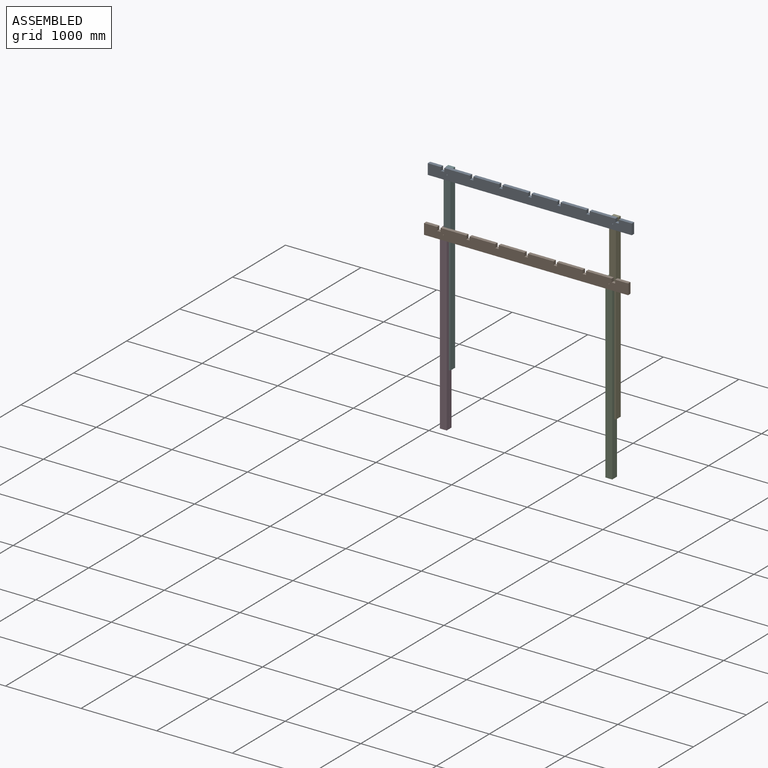
[diagram: assembled view]
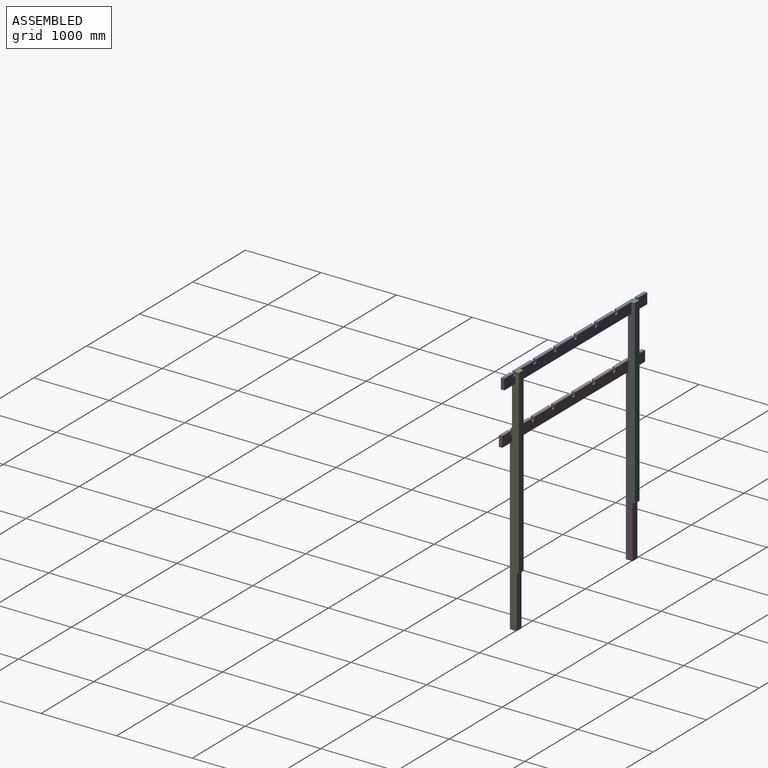
[diagram: assembled view, second angle]
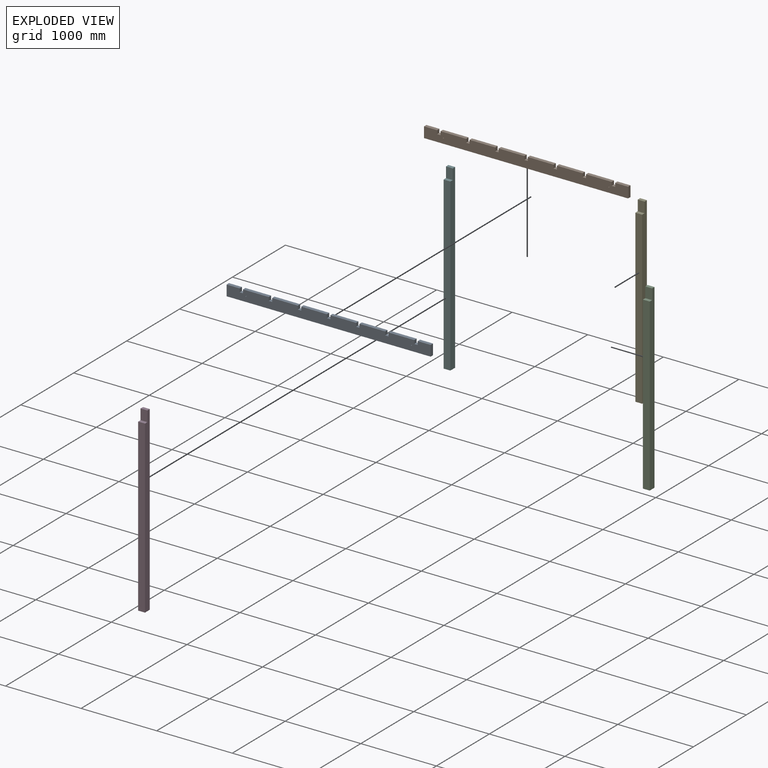
[diagram: exploded view]
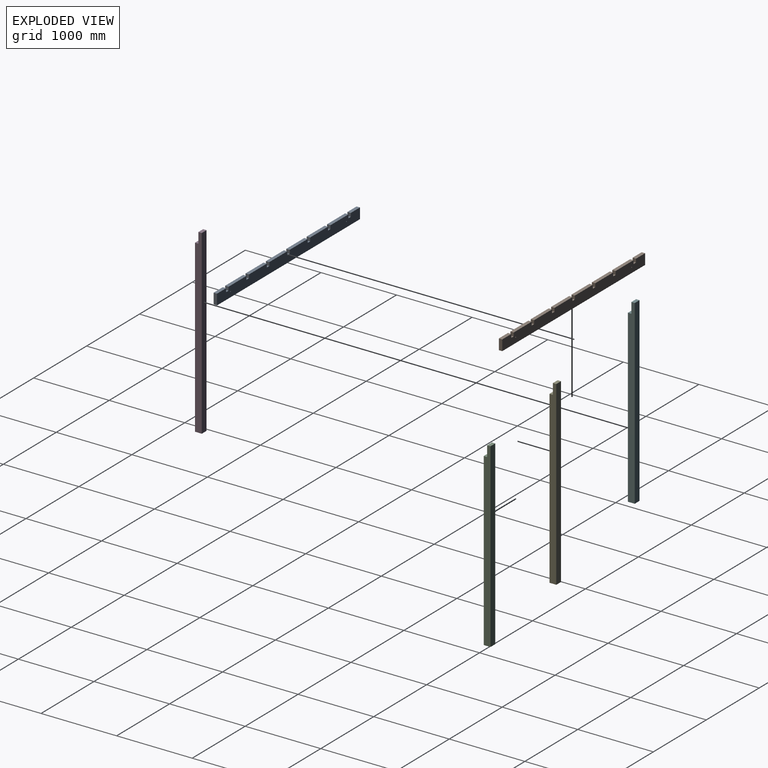
[diagram: exploded view, second angle]
ASSEMBLY  parts=6 mates=4
PART A: 36 faces, bbox 2700x45x140 mm
  f0: plane 172.5x45mm, normal (0,0,1), area 7762.5mm2, adj f2,f25,f31,f32
  f1: plane 46.67x45mm, normal (1,0,0), area 2100mm2, adj f3,f4,f25,f32
  f2: plane 46.67x45mm, normal (-1,0,0), area 2100mm2, adj f0,f3,f25,f32
  f3: plane 45x45mm, normal (0,0,1), area 2025mm2, adj f1,f2,f25,f32
  f4: plane 340x45mm, normal (0,0,1), area 15300mm2, adj f1,f6,f25,f32
  f5: plane 46.67x45mm, normal (1,0,0), area 2100mm2, adj f7,f8,f25,f32
  f6: plane 46.67x45mm, normal (-1,0,0), area 2100mm2, adj f4,f7,f25,f32
  f7: plane 45x45mm, normal (0,0,1), area 2025mm2, adj f5,f6,f25,f32
  f8: plane 340x45mm, normal (0,0,1), area 15300mm2, adj f5,f10,f25,f32
  f9: plane 46.67x45mm, normal (1,0,0), area 2100mm2, adj f11,f24,f25,f32
  f10: plane 46.67x45mm, normal (-1,0,0), area 2100mm2, adj f8,f11,f25,f32
  f11: plane 45x45mm, normal (0,0,1), area 2025mm2, adj f9,f10,f25,f32
  f12: plane 340x45mm, normal (0,0,1), area 15300mm2, adj f14,f25,f32,f34
  f13: plane 46.67x45mm, normal (1,0,0), area 2100mm2, adj f15,f16,f25,f32
  f14: plane 46.67x45mm, normal (-1,0,0), area 2100mm2, adj f12,f15,f25,f32
  f15: plane 45x45mm, normal (0,0,1), area 2025mm2, adj f13,f14,f25,f32
  f16: plane 340x45mm, normal (0,0,1), area 15300mm2, adj f13,f18,f25,f32
  f17: plane 46.67x45mm, normal (1,0,0), area 2100mm2, adj f19,f20,f25,f32
  f18: plane 46.67x45mm, normal (-1,0,0), area 2100mm2, adj f16,f19,f25,f32
  f19: plane 45x45mm, normal (0,0,1), area 2025mm2, adj f17,f18,f25,f32
  f20: plane 340x45mm, normal (0,0,1), area 15300mm2, adj f17,f22,f25,f32
  f21: plane 46.67x45mm, normal (1,0,0), area 2100mm2, adj f23,f25,f26,f32
  f22: plane 46.67x45mm, normal (-1,0,0), area 2100mm2, adj f20,f23,f25,f32
  f23: plane 45x45mm, normal (0,0,1), area 2025mm2, adj f21,f22,f25,f32
  f24: plane 340x45mm, normal (0,0,1), area 15300mm2, adj f9,f25,f32,f33
  f25: plane 2700x140mm, normal (0,-1,0), area 363073.8mm2, adj f0,f1,f2,f3,f4,f5,f6,f7
  f26: plane 172.5x45mm, normal (0,0,1), area 7762.5mm2, adj f21,f25,f27,f32
  f27: plane 140x45mm, normal (-1,0,0), area 6300mm2, adj f25,f26,f28,f32
  f28: plane 2700x45mm, normal (0,0,-1), area 121500mm2, adj f25,f27,f31,f32
  f29: cylinder r=6mm len=45mm, axis (0,-1,0), area 1696.5mm2, adj f25,f32
  f30: cylinder r=6mm len=45mm, axis (0,-1,0), area 1696.5mm2, adj f25,f32
  f31: plane 140x45mm, normal (1,0,0), area 6300mm2, adj f0,f25,f28,f32
  f32: plane 2700x140mm, normal (0,1,0), area 363073.8mm2, adj f0,f1,f2,f3,f4,f5,f6,f7
  f33: plane 46.67x45mm, normal (-1,0,0), area 2100mm2, adj f24,f25,f32,f35
  f34: plane 46.67x45mm, normal (1,0,0), area 2100mm2, adj f12,f25,f32,f35
  f35: plane 45x45mm, normal (0,0,1), area 2025mm2, adj f25,f32,f33,f34
PART B: same geometry as A
PART C: 8 faces, bbox 90x90x2400 mm
  f0: plane 2260x90mm, normal (0,-1,0), area 203400mm2, adj f2,f3,f5,f6
  f1: plane 90x45mm, normal (0,0,1), area 4050mm2, adj f2,f3,f4,f7
  f2: plane 2400x90mm, normal (-1,0,0), area 209700mm2, adj f0,f1,f4,f5,f6,f7
  f3: plane 2400x90mm, normal (1,0,0), area 209700mm2, adj f0,f1,f4,f5,f6,f7
  f4: plane 2400x90mm, normal (0,1,0), area 216000mm2, adj f1,f2,f3,f5
  f5: plane 90x90mm, normal (0,0,-1), area 8100mm2, adj f0,f2,f3,f4
  f6: plane 90x45mm, normal (0,0,1), area 4050mm2, adj f0,f2,f3,f7
  f7: plane 140x90mm, normal (0,-1,0), area 12600mm2, adj f1,f2,f3,f6
PART D: same geometry as C
PART E: same geometry as C
PART F: same geometry as C
PLACE A t=(109.53,41.5,1056.32)mm
PLACE B t=(89.7,0,350.25)mm
PLACE C t=(-665.06,0,-394.25)mm
PLACE D t=(-2855.06,0,-394.25)mm
PLACE E t=(-645.23,41.5,311.82)mm
PLACE F t=(-2835.23,41.5,311.82)mm
MATE fastened E.f7 <-> A.f30  axis (0,-1,0) through (-600.23,86.5,2641.82)mm
MATE fastened C.f7 <-> B.f30  axis (0,-1,0) through (-620.06,45,1935.75)mm
MATE fastened D.f7 <-> B.f29  axis (0,-1,0) through (-2810.06,45,1935.75)mm
MATE fastened F.f7 <-> A.f29  axis (0,-1,0) through (-2790.23,86.5,2641.82)mm
